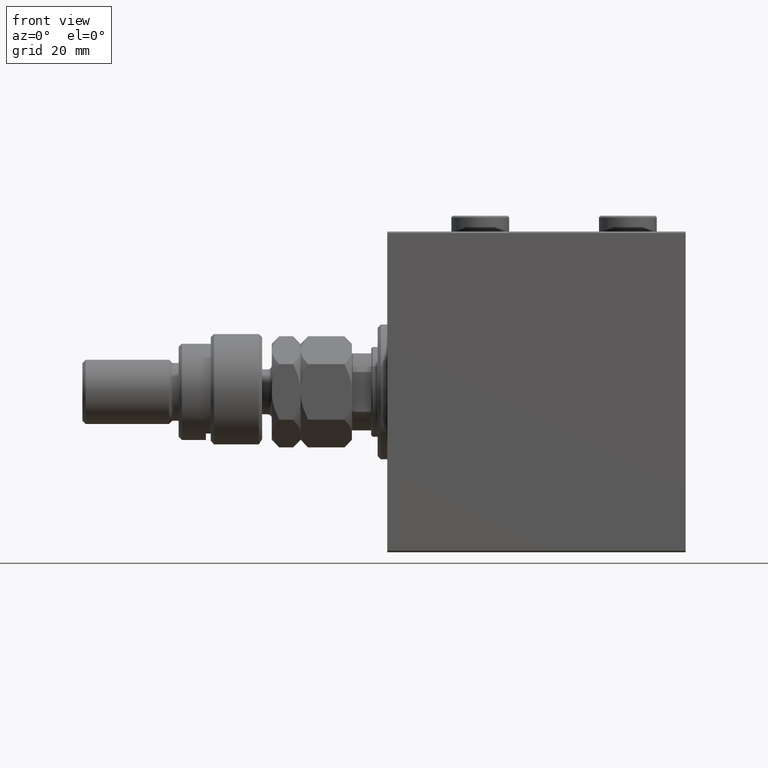
[diagram: clean part render]
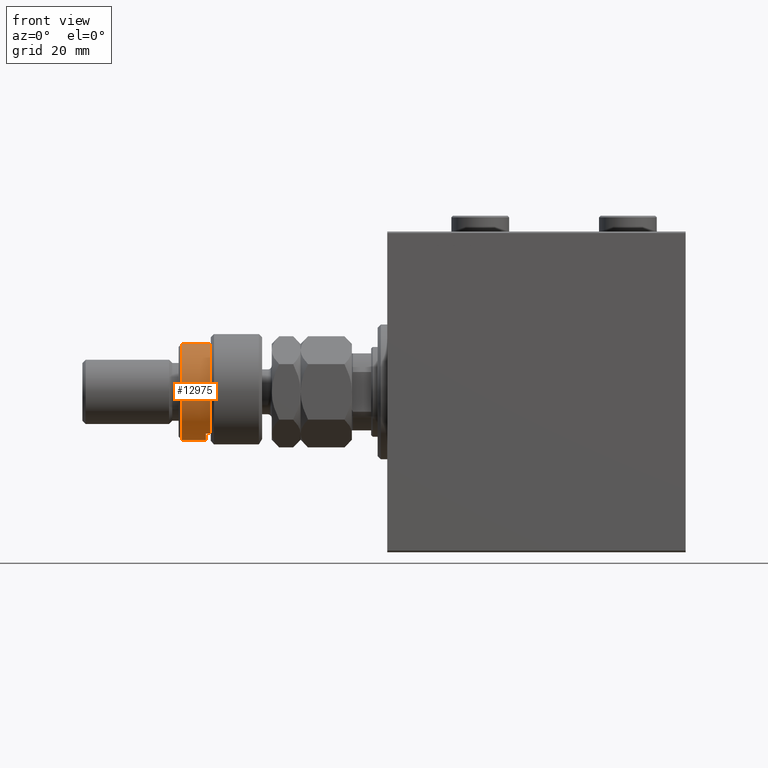
[diagram: same view with one face highlighted and labeled with its STEP entity id]
A machine part, front view. The second image highlights one B-rep face of the part: STEP entity #12975.
In plain terms, the highlighted cylindrical surface (partial cylindrical patch) has radius 15 mm, axis along (1, -0, -0).
Its self-contained STEP definition (entity closure, byte-faithful):
#1778 = EDGE_CURVE ( 'NONE', #28733, #6815, #4393, .T. ) ;
#4393 = CIRCLE ( 'NONE', #34816, 15.00000000000000000 ) ;
#4716 = CARTESIAN_POINT ( 'NONE',  ( -12.99038105676658006, -7.500000000000000000, 16.00000000000000000 ) ) ;
#5573 = CIRCLE ( 'NONE', #32124, 15.00000000000000000 ) ;
#6815 = VERTEX_POINT ( 'NONE', #17712 ) ;
#8646 = DIRECTION ( 'NONE',  ( 1.000000000000000000, 0.000000000000000000, 0.000000000000000000 ) ) ;
#9825 = DIRECTION ( 'NONE',  ( 1.000000000000000000, 0.000000000000000000, 0.000000000000000000 ) ) ;
#10076 = CARTESIAN_POINT ( 'NONE',  ( 0.000000000000000000, 0.000000000000000000, 24.99999999999997868 ) ) ;
#10754 = VERTEX_POINT ( 'NONE', #29519 ) ;
#11537 = DIRECTION ( 'NONE',  ( -0.000000000000000000, -0.000000000000000000, -1.000000000000000000 ) ) ;
#11951 = CARTESIAN_POINT ( 'NONE',  ( 15.00000000000000000, 1.836970198721029589E-15, 26.00000000000000355 ) ) ;
#12304 = DIRECTION ( 'NONE',  ( 0.000000000000000000, 0.000000000000000000, 1.000000000000000000 ) ) ;
#12975 = ADVANCED_FACE ( 'NONE', ( #17769 ), #32683, .T. ) ;
#13080 = ORIENTED_EDGE ( 'NONE', *, *, #14960, .F. ) ;
#13415 = ORIENTED_EDGE ( 'NONE', *, *, #39816, .F. ) ;
#14104 = DIRECTION ( 'NONE',  ( -0.000000000000000000, -0.000000000000000000, -1.000000000000000000 ) ) ;
#14437 = VERTEX_POINT ( 'NONE', #21401 ) ;
#14960 = EDGE_CURVE ( 'NONE', #42392, #6815, #44966, .T. ) ;
#16214 = EDGE_LOOP ( 'NONE', ( #13080, #24464, #47704, #13415, #25677, #47926 ) ) ;
#16921 = LINE ( 'NONE', #47961, #45943 ) ;
#17712 = CARTESIAN_POINT ( 'NONE',  ( 15.00000000000000000, 1.836970198721029589E-15, 16.00000000000000000 ) ) ;
#17769 = FACE_OUTER_BOUND ( 'NONE', #16214, .T. ) ;
#18671 = EDGE_CURVE ( 'NONE', #42392, #10754, #5573, .T. ) ;
#21401 = CARTESIAN_POINT ( 'NONE',  ( -12.99038105676658006, -7.500000000000000000, 17.50000000000000000 ) ) ;
#22043 = DIRECTION ( 'NONE',  ( 0.000000000000000000, 0.000000000000000000, -1.000000000000000000 ) ) ;
#22131 = VERTEX_POINT ( 'NONE', #28300 ) ;
#22239 = DIRECTION ( 'NONE',  ( -0.000000000000000000, -0.000000000000000000, -1.000000000000000000 ) ) ;
#24464 = ORIENTED_EDGE ( 'NONE', *, *, #18671, .T. ) ;
#25677 = ORIENTED_EDGE ( 'NONE', *, *, #33394, .T. ) ;
#26714 = CARTESIAN_POINT ( 'NONE',  ( 15.00000000000000000, 1.836970198721029589E-15, 24.99999999999997868 ) ) ;
#28168 = CIRCLE ( 'NONE', #41438, 15.00000000000000000 ) ;
#28300 = CARTESIAN_POINT ( 'NONE',  ( -15.00000000000000000, 0.000000000000000000, 17.50000000000000000 ) ) ;
#28733 = VERTEX_POINT ( 'NONE', #4716 ) ;
#29013 = DIRECTION ( 'NONE',  ( -1.000000000000000000, 0.000000000000000000, 0.000000000000000000 ) ) ;
#29407 = CARTESIAN_POINT ( 'NONE',  ( -15.00000000000000000, 0.000000000000000000, 26.00000000000000355 ) ) ;
#29519 = CARTESIAN_POINT ( 'NONE',  ( -15.00000000000000000, 0.000000000000000000, 24.99999999999997868 ) ) ;
#32124 = AXIS2_PLACEMENT_3D ( 'NONE', #10076, #22043, #9825 ) ;
#32683 = CYLINDRICAL_SURFACE ( 'NONE', #38147, 15.00000000000000000 ) ;
#33054 = DIRECTION ( 'NONE',  ( -0.000000000000000000, -0.000000000000000000, -1.000000000000000000 ) ) ;
#33394 = EDGE_CURVE ( 'NONE', #14437, #28733, #16921, .T. ) ;
#34577 = CARTESIAN_POINT ( 'NONE',  ( 0.000000000000000000, 0.000000000000000000, 17.50000000000000000 ) ) ;
#34816 = AXIS2_PLACEMENT_3D ( 'NONE', #45807, #12304, #8646 ) ;
#38147 = AXIS2_PLACEMENT_3D ( 'NONE', #47594, #14104, #29013 ) ;
#38961 = DIRECTION ( 'NONE',  ( 0.000000000000000000, 0.000000000000000000, -1.000000000000000000 ) ) ;
#39816 = EDGE_CURVE ( 'NONE', #14437, #22131, #28168, .T. ) ;
#39994 = EDGE_CURVE ( 'NONE', #10754, #22131, #40656, .T. ) ;
#40656 = LINE ( 'NONE', #29407, #43013 ) ;
#41438 = AXIS2_PLACEMENT_3D ( 'NONE', #34577, #38961, #41908 ) ;
#41908 = DIRECTION ( 'NONE',  ( -1.000000000000000000, 0.000000000000000000, 0.000000000000000000 ) ) ;
#42392 = VERTEX_POINT ( 'NONE', #26714 ) ;
#43013 = VECTOR ( 'NONE', #11537, 1000.000000000000000 ) ;
#44966 = LINE ( 'NONE', #11951, #46849 ) ;
#45807 = CARTESIAN_POINT ( 'NONE',  ( 0.000000000000000000, 0.000000000000000000, 16.00000000000000000 ) ) ;
#45943 = VECTOR ( 'NONE', #33054, 1000.000000000000000 ) ;
#46849 = VECTOR ( 'NONE', #22239, 1000.000000000000000 ) ;
#47594 = CARTESIAN_POINT ( 'NONE',  ( 0.000000000000000000, 0.000000000000000000, 26.00000000000000355 ) ) ;
#47704 = ORIENTED_EDGE ( 'NONE', *, *, #39994, .T. ) ;
#47926 = ORIENTED_EDGE ( 'NONE', *, *, #1778, .T. ) ;
#47961 = CARTESIAN_POINT ( 'NONE',  ( -12.99038105676658006, -7.500000000000000000, 26.00000000000000355 ) ) ;